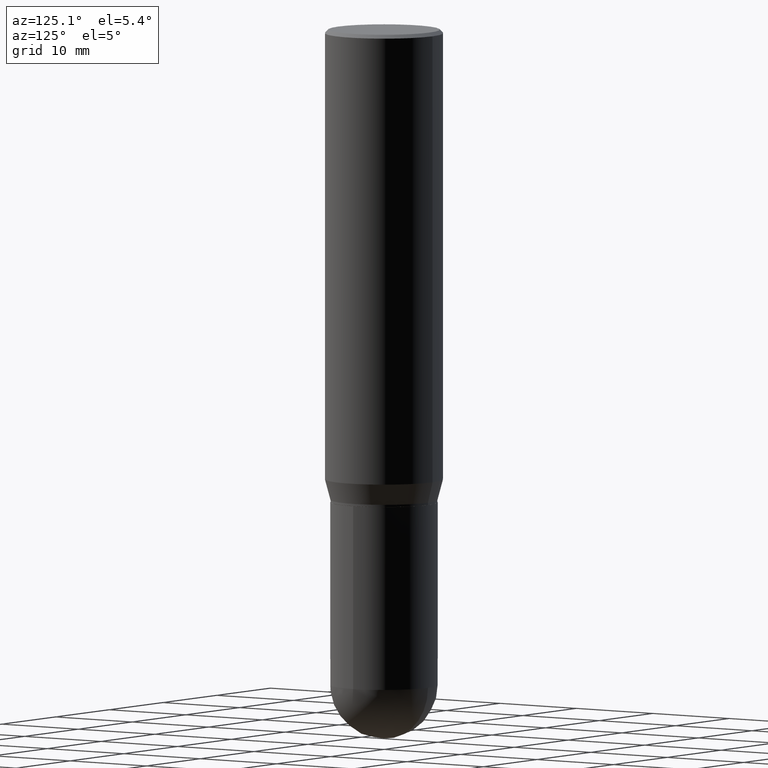
[diagram: clean part render]
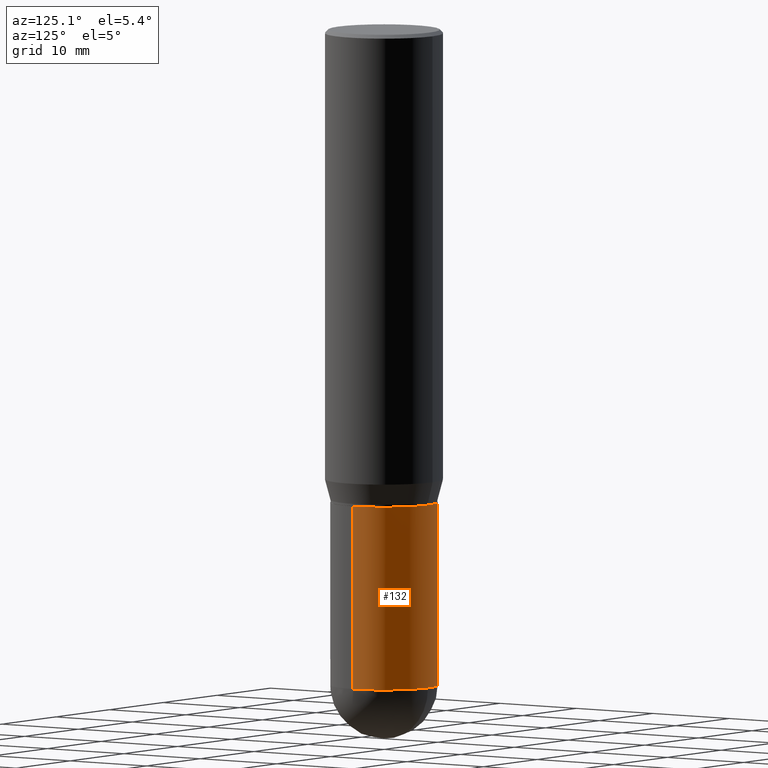
[diagram: same view with one face highlighted and labeled with its STEP entity id]
A machine part, auxiliary view. The second image highlights one B-rep face of the part: STEP entity #132.
In plain terms, the highlighted cylindrical surface (partial cylindrical patch) has radius 5.7544 mm, axis along (-0, 0, 1).
Its self-contained STEP definition (entity closure, byte-faithful):
#1 = VERTEX_POINT ( 'NONE', #313 ) ;
#14 = CARTESIAN_POINT ( 'NONE',  ( 4.890937612370273754E-29, -6.982962677686291954E-15, -2.000000000000000444 ) ) ;
#23 = EDGE_CURVE ( 'NONE', #462, #28, #87, .T. ) ;
#28 = VERTEX_POINT ( 'NONE', #240 ) ;
#35 = CARTESIAN_POINT ( 'NONE',  ( 0.2265500000000000291, -9.915195993080232639E-15, -2.773450000000000415 ) ) ;
#49 = DIRECTION ( 'NONE',  ( -2.445468806185136597E-29, 3.491481338843145583E-15, 1.000000000000000000 ) ) ;
#57 = DIRECTION ( 'NONE',  ( 1.000000000000000000, -6.982962677686266711E-15, 0.000000000000000000 ) ) ;
#59 = EDGE_CURVE ( 'NONE', #505, #241, #246, .T. ) ;
#64 = VECTOR ( 'NONE', #149, 39.37007874015748143 ) ;
#66 = CARTESIAN_POINT ( 'NONE',  ( -0.2265500000000000291, -6.723471230585900551E-15, -2.773450000000000415 ) ) ;
#85 = CYLINDRICAL_SURFACE ( 'NONE', #278, 0.2265500000000000291 ) ;
#87 = LINE ( 'NONE', #277, #126 ) ;
#104 = EDGE_CURVE ( 'NONE', #28, #1, #429, .T. ) ;
#108 = AXIS2_PLACEMENT_3D ( 'NONE', #163, #197, #511 ) ;
#118 = CARTESIAN_POINT ( 'NONE',  ( 6.782385460514168389E-29, -9.683448919214523504E-15, -2.773450000000000415 ) ) ;
#126 = VECTOR ( 'NONE', #445, 39.37007874015748143 ) ;
#132 = ADVANCED_FACE ( 'NONE', ( #138 ), #85, .T. ) ;
#138 = FACE_OUTER_BOUND ( 'NONE', #199, .T. ) ;
#149 = DIRECTION ( 'NONE',  ( -2.445468806185136877E-29, 3.491481338843145188E-15, 1.000000000000000000 ) ) ;
#159 = DIRECTION ( 'NONE',  ( 1.000000000000000000, -6.982962677686266711E-15, 0.000000000000000000 ) ) ;
#163 = CARTESIAN_POINT ( 'NONE',  ( 6.782385460514168389E-29, -9.683448919214523504E-15, -2.773450000000000415 ) ) ;
#197 = DIRECTION ( 'NONE',  ( -2.445468806185136597E-29, 3.491481338843145583E-15, 1.000000000000000000 ) ) ;
#199 = EDGE_LOOP ( 'NONE', ( #365, #281, #354, #203, #336 ) ) ;
#203 = ORIENTED_EDGE ( 'NONE', *, *, #23, .F. ) ;
#209 = CARTESIAN_POINT ( 'NONE',  ( 0.000000000000000000, 0.000000000000000000, 0.000000000000000000 ) ) ;
#210 = DIRECTION ( 'NONE',  ( 1.000000000000000000, -6.982962677686266711E-15, 4.876176775795935793E-29 ) ) ;
#214 = EDGE_CURVE ( 'NONE', #241, #1, #465, .T. ) ;
#240 = CARTESIAN_POINT ( 'NONE',  ( 0.2265500000000000291, -8.564952872316116075E-15, -2.000000000000000444 ) ) ;
#241 = VERTEX_POINT ( 'NONE', #66 ) ;
#245 = DIRECTION ( 'NONE',  ( -2.445468806185136597E-29, 3.491481338843145583E-15, 1.000000000000000000 ) ) ;
#246 = CIRCLE ( 'NONE', #287, 0.2265500000000000291 ) ;
#254 = CARTESIAN_POINT ( 'NONE',  ( -0.2265500000000000291, 1.609734567864507178E-15, -1.114384744697249003E-29 ) ) ;
#277 = CARTESIAN_POINT ( 'NONE',  ( 0.2265500000000000291, -1.581990194629823924E-15, 1.104697848556569421E-29 ) ) ;
#278 = AXIS2_PLACEMENT_3D ( 'NONE', #209, #49, #210 ) ;
#281 = ORIENTED_EDGE ( 'NONE', *, *, #214, .T. ) ;
#287 = AXIS2_PLACEMENT_3D ( 'NONE', #118, #395, #159 ) ;
#313 = CARTESIAN_POINT ( 'NONE',  ( -0.2265500000000000291, -6.723471230585900551E-15, -2.000000000000000444 ) ) ;
#336 = ORIENTED_EDGE ( 'NONE', *, *, #476, .T. ) ;
#354 = ORIENTED_EDGE ( 'NONE', *, *, #104, .F. ) ;
#365 = ORIENTED_EDGE ( 'NONE', *, *, #59, .T. ) ;
#382 = AXIS2_PLACEMENT_3D ( 'NONE', #14, #245, #57 ) ;
#395 = DIRECTION ( 'NONE',  ( -2.445468806185136597E-29, 3.491481338843145583E-15, 1.000000000000000000 ) ) ;
#410 = CARTESIAN_POINT ( 'NONE',  ( 1.581990194629891371E-15, 0.2265499999999903147, -2.773450000000000859 ) ) ;
#429 = CIRCLE ( 'NONE', #382, 0.2265500000000000291 ) ;
#445 = DIRECTION ( 'NONE',  ( -2.445468806185136877E-29, 3.491481338843145188E-15, 1.000000000000000000 ) ) ;
#462 = VERTEX_POINT ( 'NONE', #35 ) ;
#465 = LINE ( 'NONE', #254, #64 ) ;
#476 = EDGE_CURVE ( 'NONE', #462, #505, #500, .T. ) ;
#500 = CIRCLE ( 'NONE', #108, 0.2265500000000000291 ) ;
#505 = VERTEX_POINT ( 'NONE', #410 ) ;
#511 = DIRECTION ( 'NONE',  ( 1.000000000000000000, -6.982962677686266711E-15, 0.000000000000000000 ) ) ;